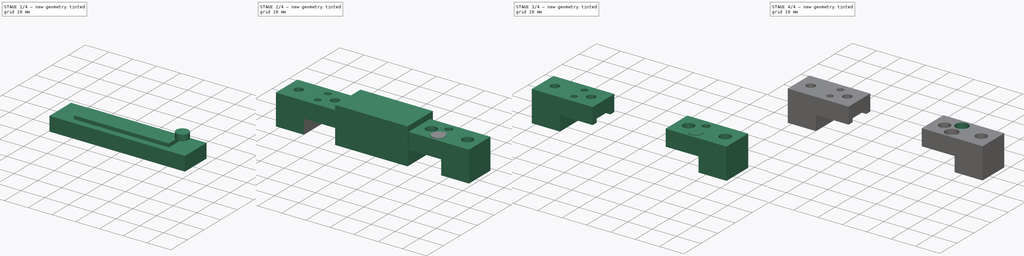
[diagram: build sequence overview — one tinted view per stage of 4, left to right]
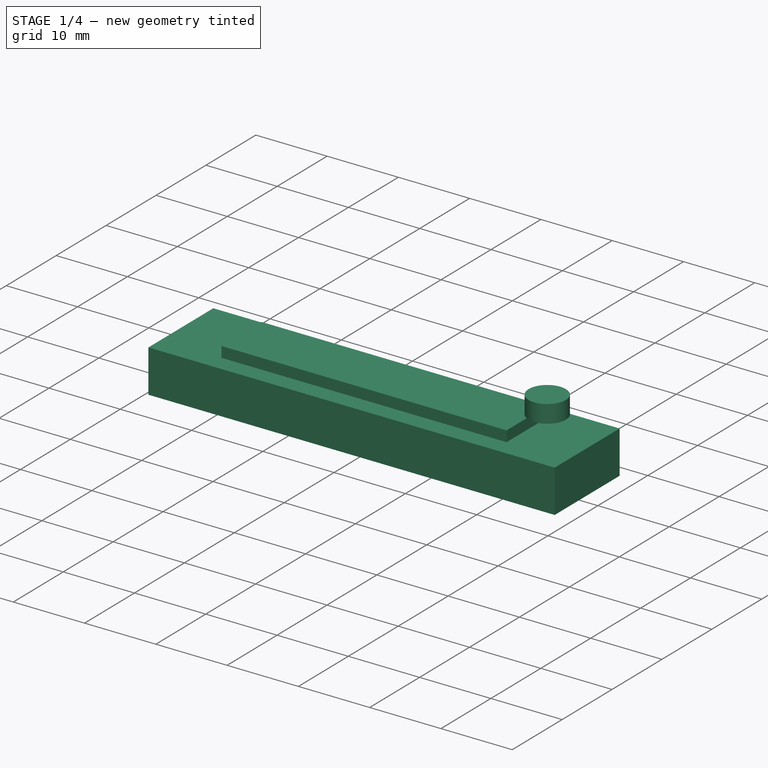
[diagram: stage 1 of 4 — iso view after this stage's code; geometry added in this stage tinted green]
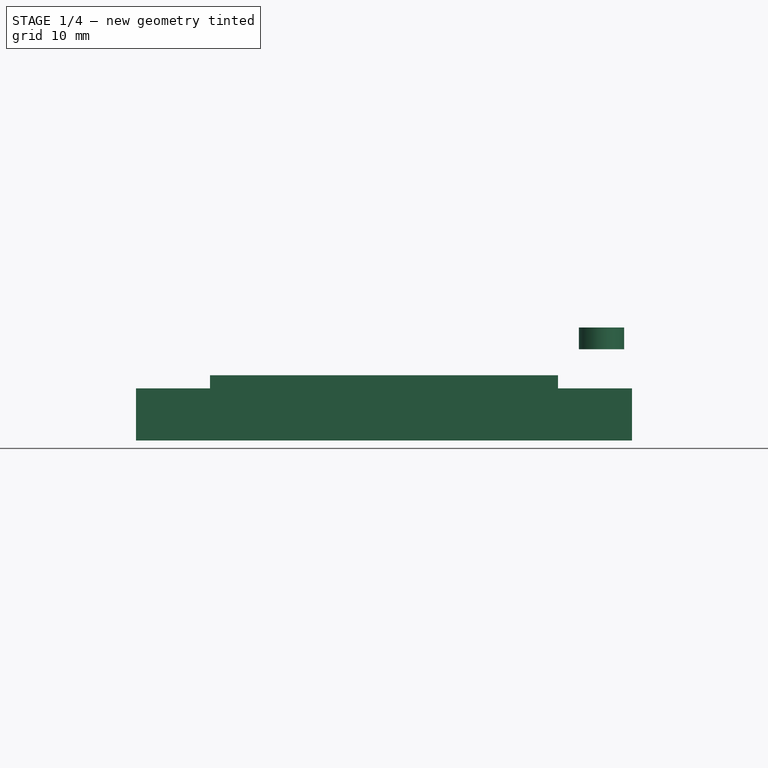
[diagram: stage 1 of 4 — front view after this stage's code; geometry added in this stage tinted green]
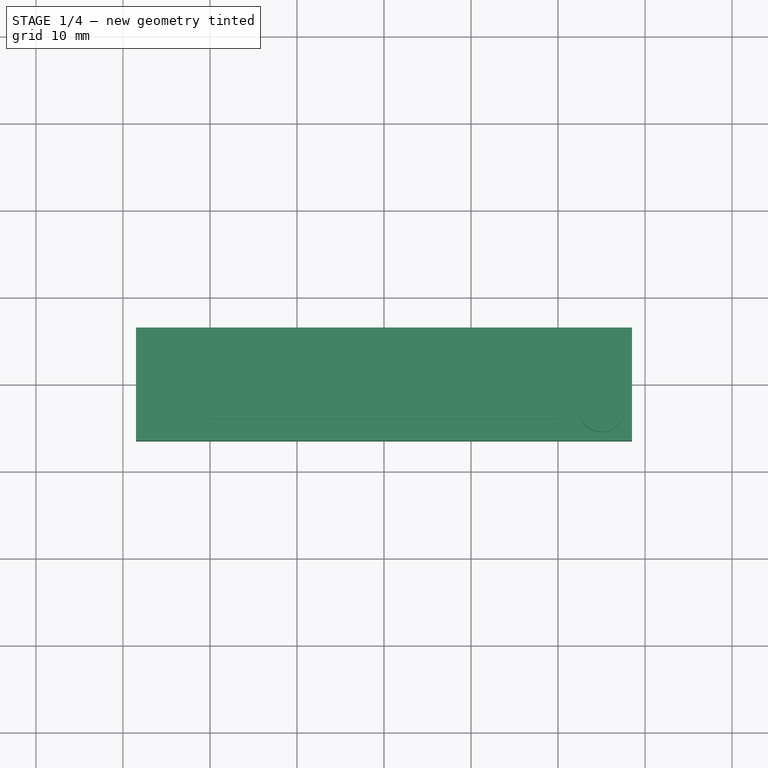
[diagram: stage 1 of 4 — top view after this stage's code; geometry added in this stage tinted green]
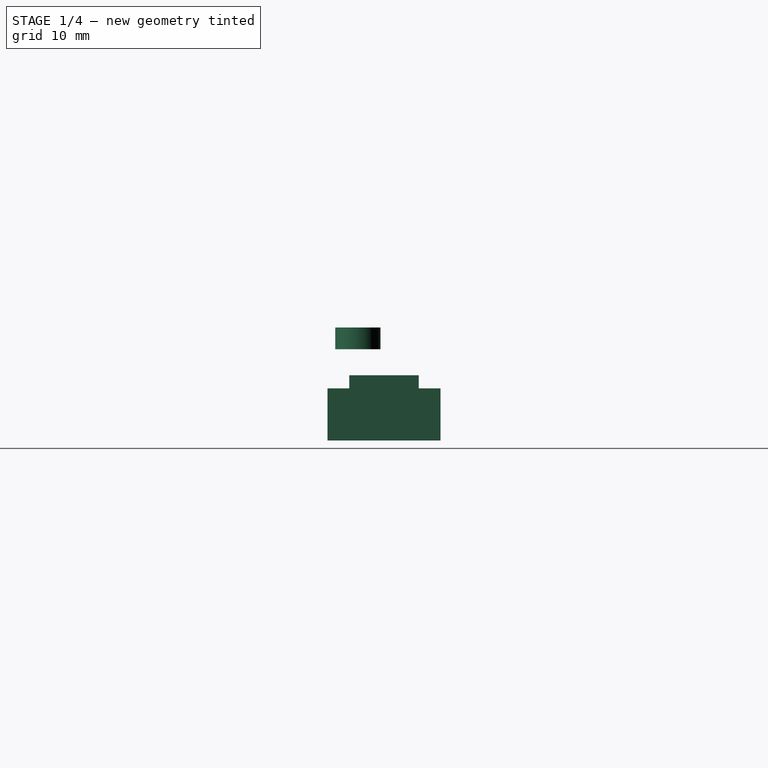
[diagram: stage 1 of 4 — right view after this stage's code; geometry added in this stage tinted green]
FCSTD DOCUMENT  (FreeCAD 0.20R29177 +426 (Git))
Label: thrust-stand-loadcell-adapter
License: All rights reserved
LicenseURL: http://en.wikipedia.org/wiki/All_rights_reserved
objects: Part::Cut×5, Part::Box×3, Part::Cylinder×2, Sketcher::SketchObject×1, Part::Extrusion×1
note: 12 computed .brp shape members not serialized (recipe doc carries the construction recipe); baked Part::Feature solids carry a one-line shape summary decoded from their .brp

FEATURE [Part::Box] Box  label="Cube"
  AttacherType = Attacher::AttachEngine3D
  Height = 6
  Length = 57
  Placement = pos=(-28.5,-6.5,0) rot=(0,0,1;0rad)
  Width = 13
FEATURE [Part::Box] Box002  label="Cube002"
  AttacherType = Attacher::AttachEngine3D
  Height = 1.5
  Length = 40
  Placement = pos=(-20,-4,6) rot=(0,0,1;0rad)
  Width = 8
FEATURE [Part::Cylinder] Cylinder001
  Angle = 360
  AttacherType = Attacher::AttachEngine3D
  FirstAngle = 0
  Height = 2.5
  Placement = pos=(25,-3,10.5) rot=(0,0,1;0rad)
  Radius = 2.6
  SecondAngle = 0
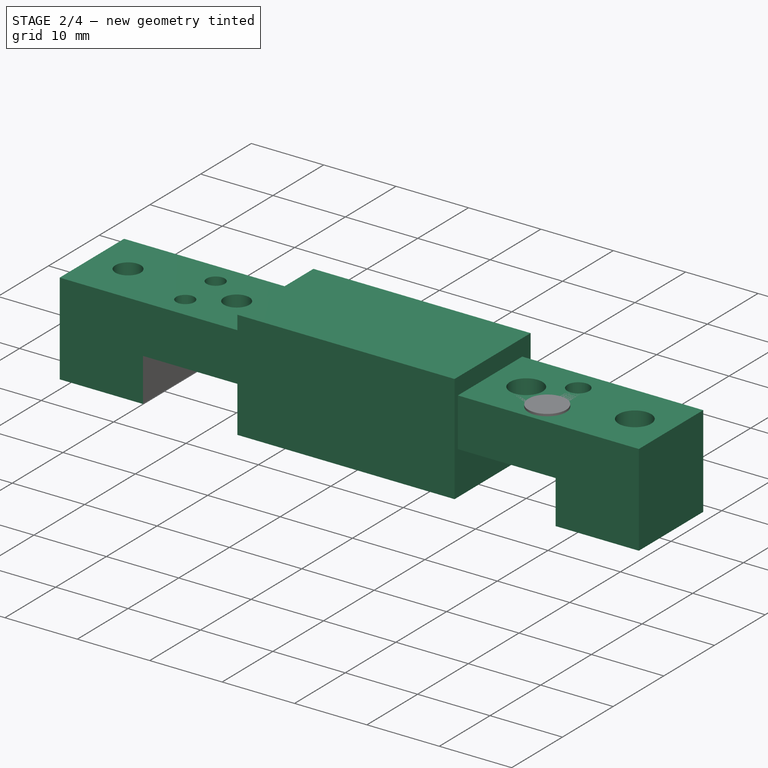
[diagram: stage 2 of 4 — iso view after this stage's code; geometry added in this stage tinted green]
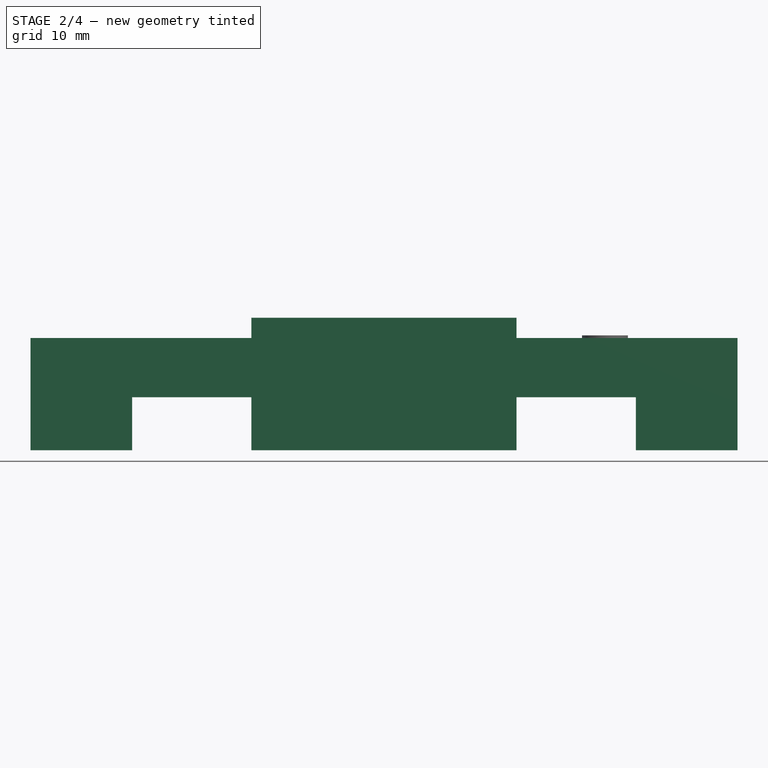
[diagram: stage 2 of 4 — front view after this stage's code; geometry added in this stage tinted green]
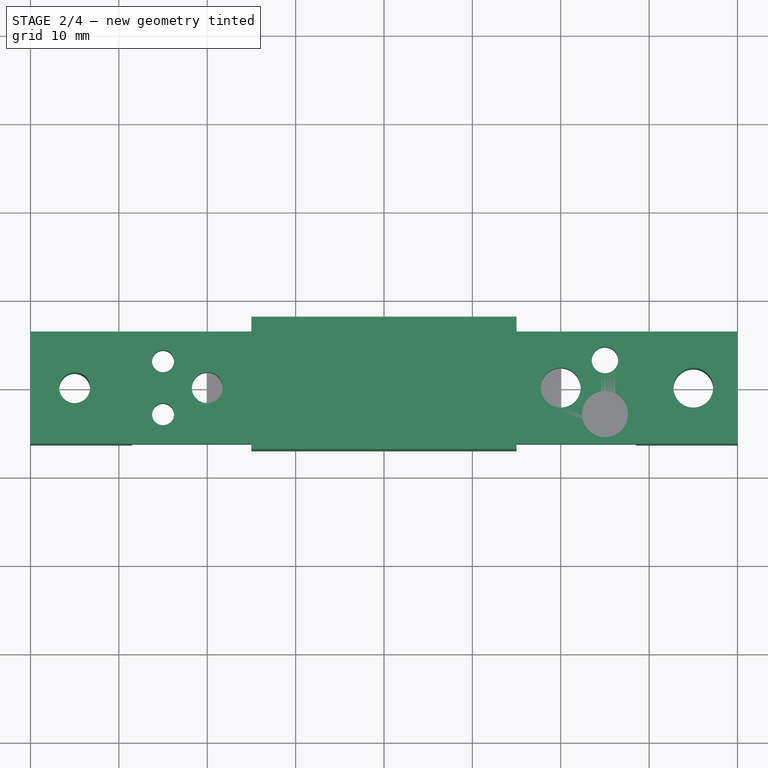
[diagram: stage 2 of 4 — top view after this stage's code; geometry added in this stage tinted green]
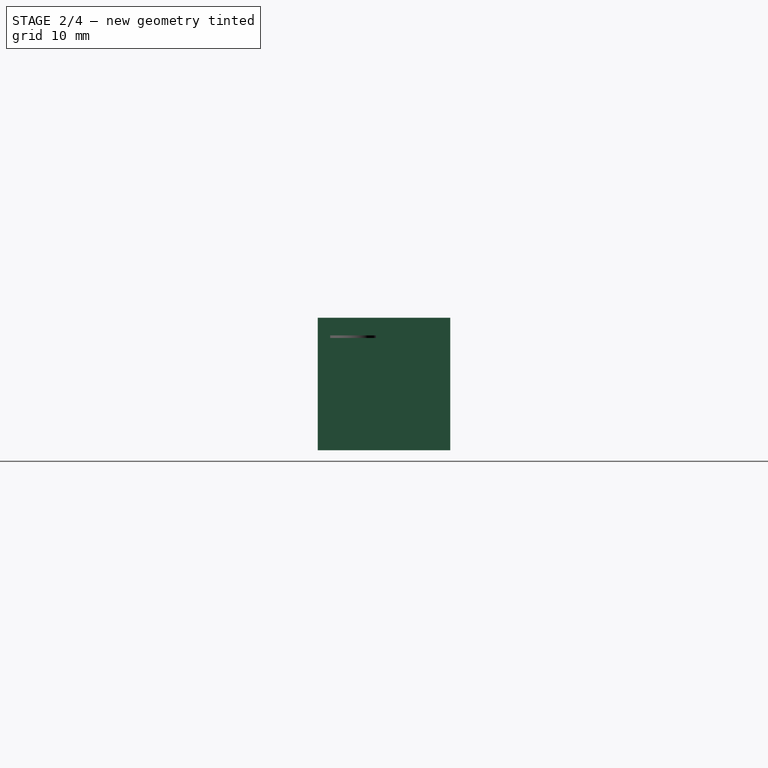
[diagram: stage 2 of 4 — right view after this stage's code; geometry added in this stage tinted green]
FEATURE [Sketcher::SketchObject] Sketch
  FullyConstrained = false
  sketch-geometry (12):
    g0: LineSegment StartX=-40 StartY=6.35 StartZ=0 EndX=40 EndY=6.35 EndZ=0
    g1: LineSegment StartX=40 StartY=6.35 StartZ=0 EndX=40 EndY=-6.35 EndZ=0
    g2: LineSegment StartX=40 StartY=-6.35 StartZ=0 EndX=-40 EndY=-6.35 EndZ=0
    g3: LineSegment StartX=-40 StartY=-6.35 StartZ=0 EndX=-40 EndY=6.35 EndZ=0
    g4: Circle CenterX=35 CenterY=0 CenterZ=0 NormalX=0 NormalY=0 NormalZ=1 AngleXU=0 Radius=2.25
    g5: Circle CenterX=20 CenterY=0 CenterZ=0 NormalX=0 NormalY=0 NormalZ=1 AngleXU=0 Radius=2.25
    g6: Circle CenterX=-35 CenterY=0 CenterZ=0 NormalX=0 NormalY=0 NormalZ=1 AngleXU=0 Radius=1.75
    g7: Circle CenterX=-20 CenterY=0 CenterZ=0 NormalX=0 NormalY=0 NormalZ=1 AngleXU=0 Radius=1.75
    g8: Circle CenterX=-25 CenterY=3 CenterZ=0 NormalX=0 NormalY=0 NormalZ=1 AngleXU=0 Radius=1.25
    g9: Circle CenterX=-25 CenterY=-3 CenterZ=0 NormalX=0 NormalY=0 NormalZ=1 AngleXU=0 Radius=1.25
    g10: Circle CenterX=25 CenterY=3.12907 CenterZ=0 NormalX=0 NormalY=0 NormalZ=1 AngleXU=0 Radius=1.5
    g11: Circle CenterX=25 CenterY=-3.12907 CenterZ=0 NormalX=0 NormalY=0 NormalZ=1 AngleXU=0 Radius=1.5
  constraints (31):
    c: Coincident(g0,g1)
    c: Coincident(g1,g2)
    c: Coincident(g2,g3)
    c: Coincident(g3,g0)
    c: Horizontal(g2)
    c: Vertical(g1)
    c: DistanceX(g0,g0) = 80
    c: DistanceY(g3,g3) = 12.7
    c: Symmetric(g0,g0,g-2)
    c: PointOnObject(g4,g-1)
    c: Radius(g4) = 2.25
    c: Distance(g4,g1) = 5
    c: PointOnObject(g5,g-1)
    c: Radius(g5) = 2.25
    c: DistanceX(g5,g1) = 20
    c: PointOnObject(g6,g-1)
    c: PointOnObject(g7,g-1)
    c: Radius(g7) = 1.75
    c: Radius(g6) = 1.75
    c: DistanceX(g0,g6) = 5
    c: DistanceX(g0,g7) = 20
    c: Radius(g9) = 1.25
    c: Radius(g8) = 1.25
    c: DistanceX(g8,g-1) = 25
    c: DistanceY(g9,g8) = 6
    c: Symmetric(g8,g9,g-1)
    c: Radius(g10) = 1.5
    c: Radius(g11) = 1.5
    c: Symmetric(g10,g11,g-1)
    c: DistanceX(g-1,g10) = 25
    c: Symmetric(g0,g2,g-1)
FEATURE [Part::Extrusion] Extrude
  Base = -> Sketch
  Dir = (0,0,1)
  DirMode = 2
  FaceMakerClass = Part::FaceMakerBullseye
  LengthFwd = 12.7
  LengthRev = 0
  Solid = true
  Symmetric = false
FEATURE [Part::Box] Box001  label="Cube001"
  AttacherType = Attacher::AttachEngine3D
  Height = 15
  Length = 30
  Placement = pos=(-15,-7,0) rot=(0,0,1;0rad)
  Width = 15
FEATURE [Part::Cut] Cut
  Base = -> Extrude
  Tool = -> Box
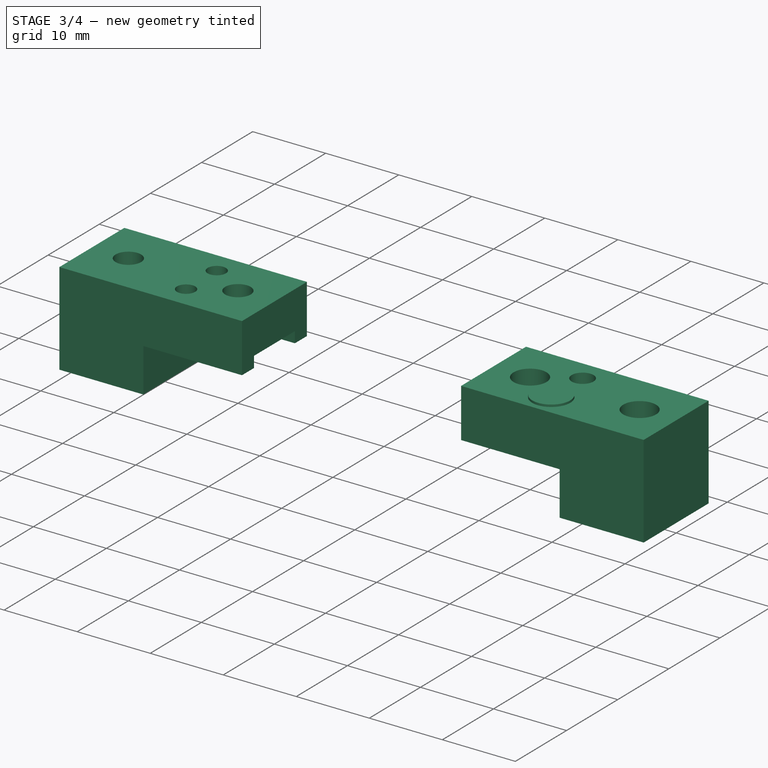
[diagram: stage 3 of 4 — iso view after this stage's code; geometry added in this stage tinted green]
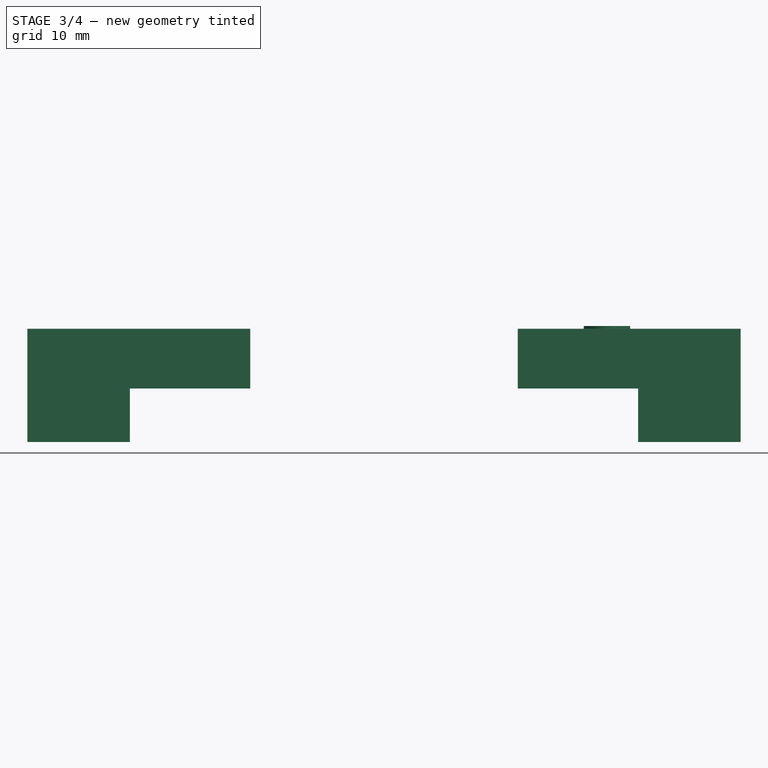
[diagram: stage 3 of 4 — front view after this stage's code; geometry added in this stage tinted green]
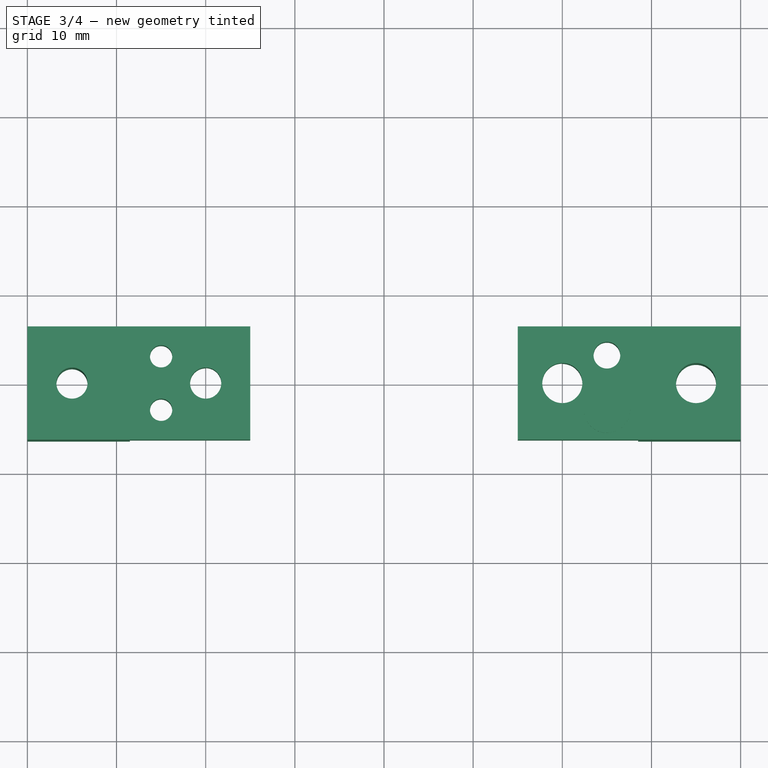
[diagram: stage 3 of 4 — top view after this stage's code; geometry added in this stage tinted green]
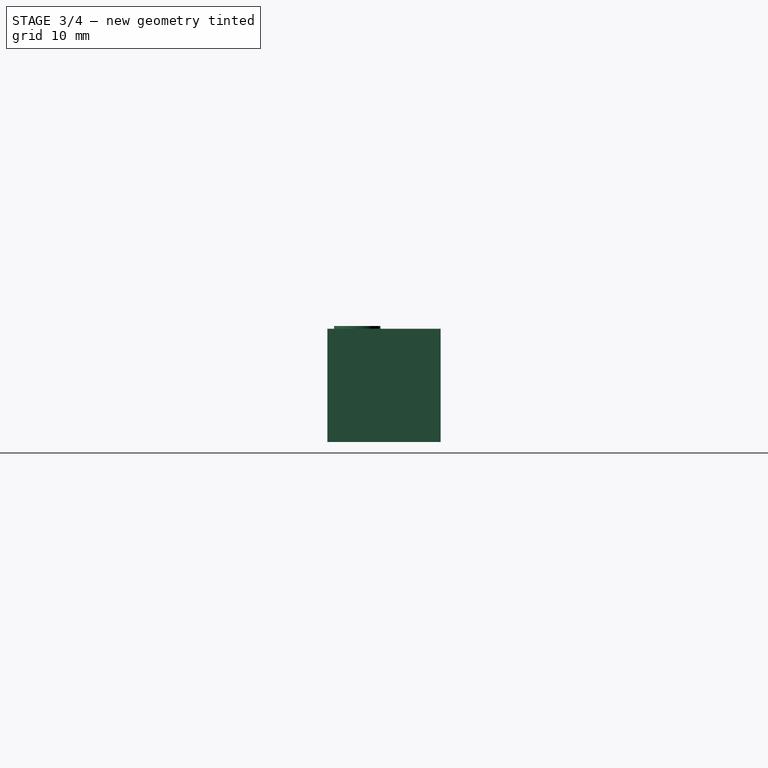
[diagram: stage 3 of 4 — right view after this stage's code; geometry added in this stage tinted green]
FEATURE [Part::Cut] Cut001
  Base = -> Cut
  Tool = -> Box001
FEATURE [Part::Cut] Cut002
  Base = -> Cut001
  Tool = -> Box002
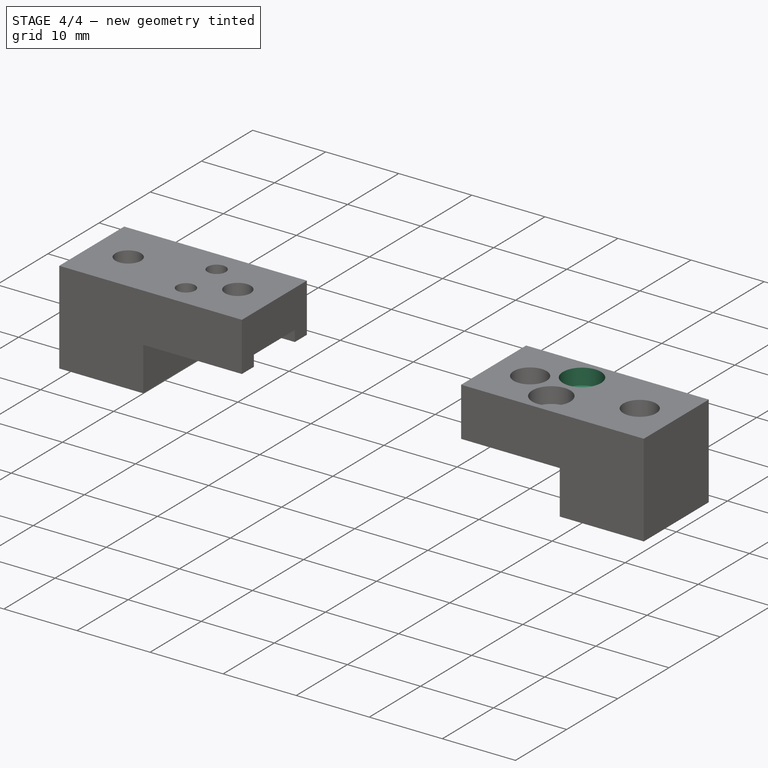
[diagram: stage 4 of 4 — iso view after this stage's code; geometry added in this stage tinted green]
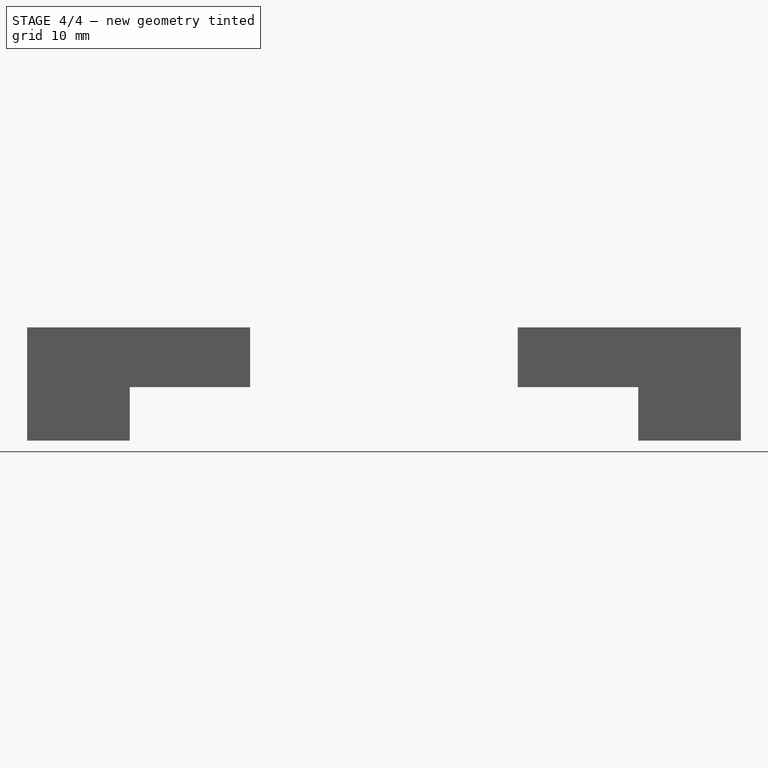
[diagram: stage 4 of 4 — front view after this stage's code; geometry added in this stage tinted green]
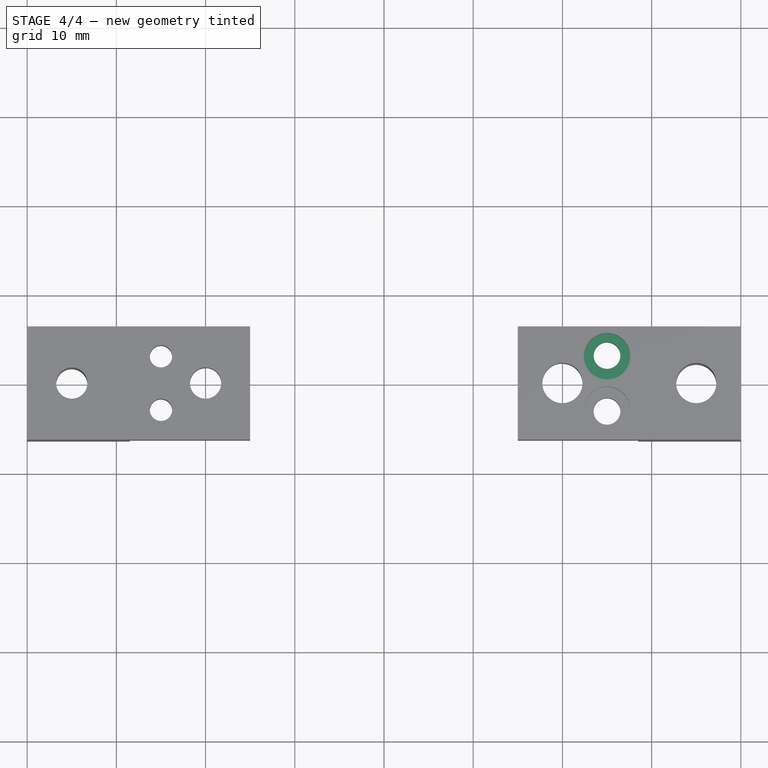
[diagram: stage 4 of 4 — top view after this stage's code; geometry added in this stage tinted green]
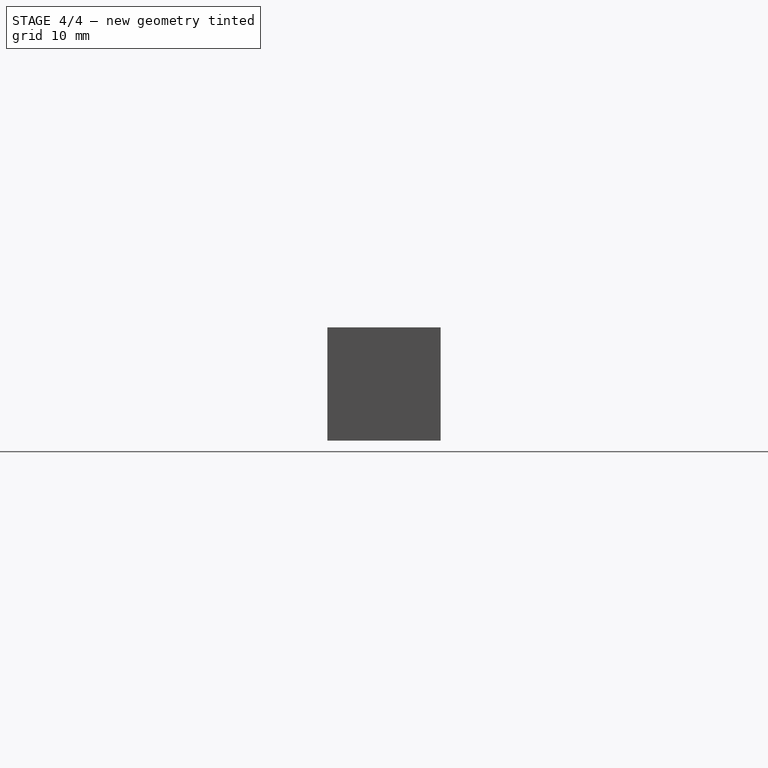
[diagram: stage 4 of 4 — right view after this stage's code; geometry added in this stage tinted green]
FEATURE [Part::Cylinder] Cylinder
  Angle = 360
  AttacherType = Attacher::AttachEngine3D
  FirstAngle = 0
  Height = 2.5
  Placement = pos=(25,3,10.5) rot=(0,0,1;0rad)
  Radius = 2.6
  SecondAngle = 0
FEATURE [Part::Cut] Cut003
  Base = -> Cut002
  Tool = -> Cylinder001
FEATURE [Part::Cut] Cut004
  Base = -> Cut003
  Tool = -> Cylinder
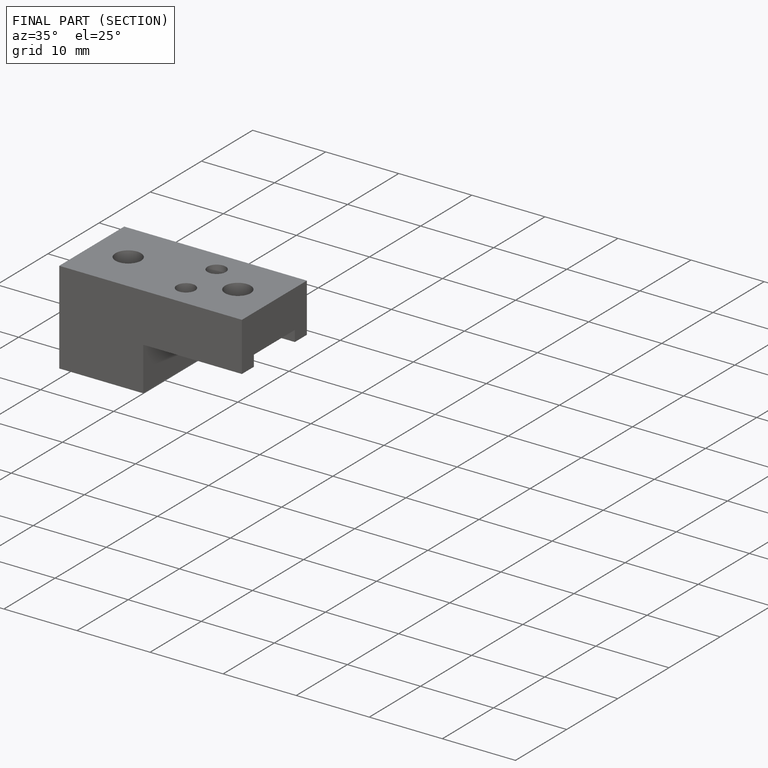
[diagram: finished part — half-section view (interior)]
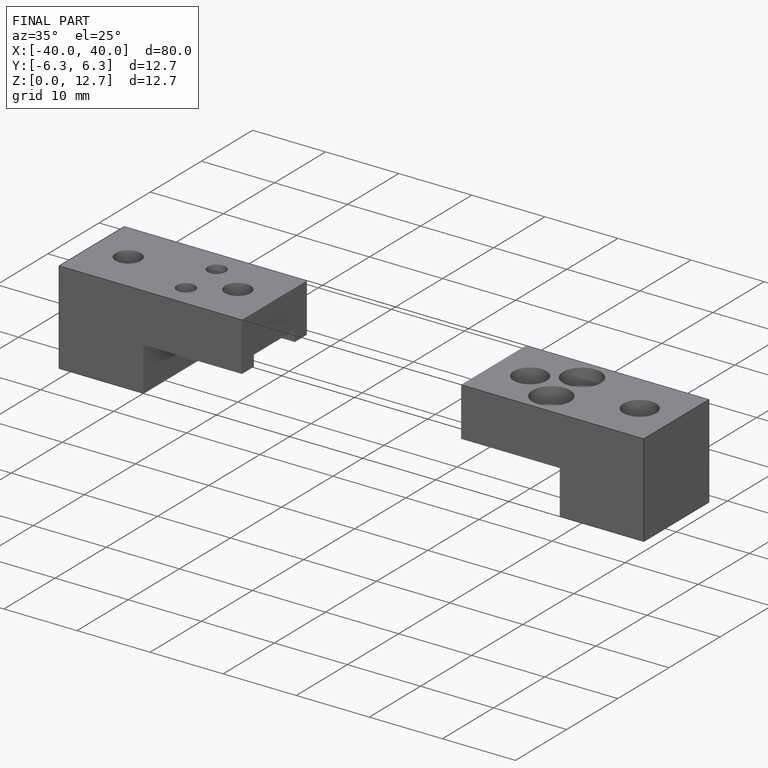
[diagram: finished part — iso view with bounding-box wireframe]
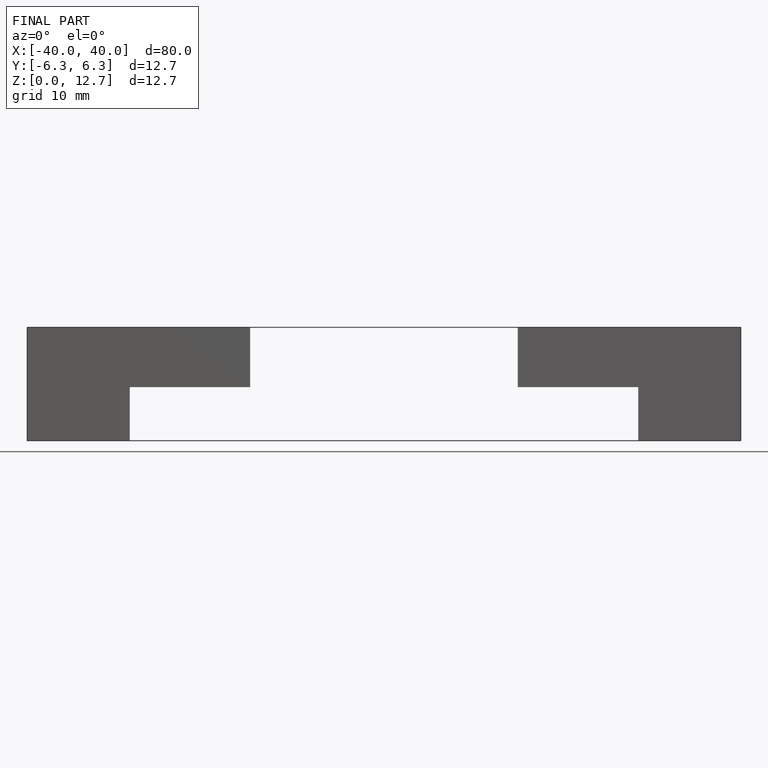
[diagram: finished part — front view with bounding-box wireframe]
